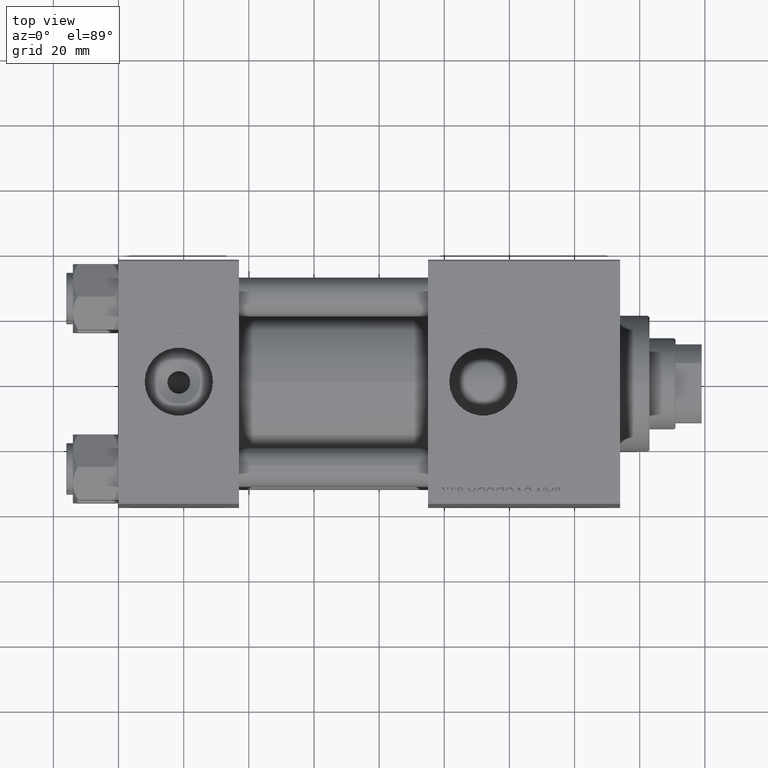
[diagram: clean part render]
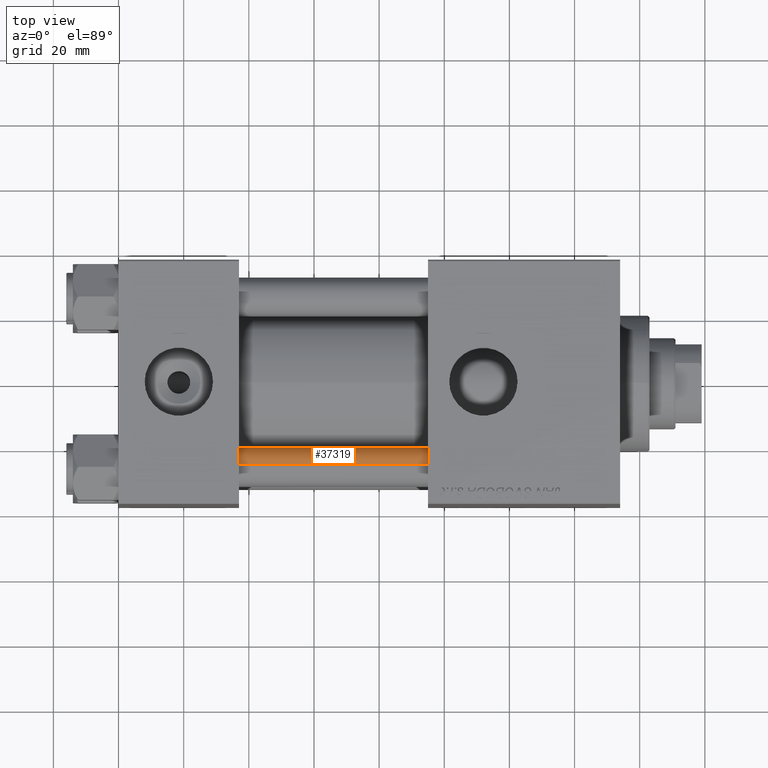
[diagram: same view with one face highlighted and labeled with its STEP entity id]
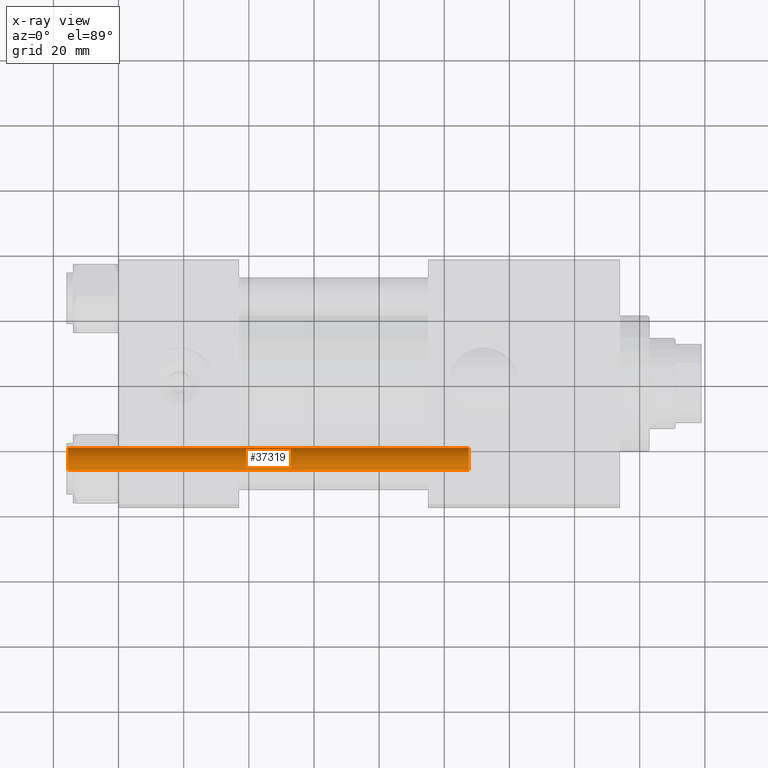
[diagram: x-ray of the same camera — body ghosted, the highlighted face saturated]
A machine part, top view. The second image highlights one B-rep face of the part: STEP entity #37319.
The next image is the same camera in x-ray: the body ghosted, the highlighted face saturated — about 0% of this face is hidden behind the body in this view.
In plain terms, the highlighted cylindrical surface (edge-blend (fillet) strip) has radius 6 mm, axis along (1, 0, -0).
Its self-contained STEP definition (entity closure, byte-faithful):
#1483 = EDGE_LOOP ( 'NONE', ( #7146, #22584, #37356, #38575 ) ) ;
#3674 = EDGE_CURVE ( 'NONE', #25400, #18741, #3842, .T. ) ;
#3842 = LINE ( 'NONE', #18710, #31040 ) ;
#4013 = CIRCLE ( 'NONE', #23239, 6.000000000000000888 ) ;
#5725 = VERTEX_POINT ( 'NONE', #41844 ) ;
#6412 = EDGE_CURVE ( 'NONE', #5725, #25400, #46183, .T. ) ;
#6968 = CARTESIAN_POINT ( 'NONE',  ( 0.000000000000000000, 0.000000000000000000, 0.4999999999999865663 ) ) ;
#7146 = ORIENTED_EDGE ( 'NONE', *, *, #29595, .F. ) ;
#10372 = DIRECTION ( 'NONE',  ( -1.000000000000000000, 0.000000000000000000, 0.000000000000000000 ) ) ;
#10634 = FACE_OUTER_BOUND ( 'NONE', #1483, .T. ) ;
#11052 = CARTESIAN_POINT ( 'NONE',  ( 6.000000000000000888, 7.347880794884120722E-16, 124.0000000000000000 ) ) ;
#11104 = DIRECTION ( 'NONE',  ( -0.000000000000000000, -0.000000000000000000, -1.000000000000000000 ) ) ;
#18710 = CARTESIAN_POINT ( 'NONE',  ( -6.000000000000000888, 0.000000000000000000, 124.0000000000000000 ) ) ;
#18741 = VERTEX_POINT ( 'NONE', #34834 ) ;
#18789 = AXIS2_PLACEMENT_3D ( 'NONE', #29778, #22687, #10372 ) ;
#19535 = DIRECTION ( 'NONE',  ( 1.000000000000000000, 0.000000000000000000, 0.000000000000000000 ) ) ;
#21766 = DIRECTION ( 'NONE',  ( 0.000000000000000000, 0.000000000000000000, -1.000000000000000000 ) ) ;
#22584 = ORIENTED_EDGE ( 'NONE', *, *, #6412, .T. ) ;
#22687 = DIRECTION ( 'NONE',  ( -0.000000000000000000, -0.000000000000000000, -1.000000000000000000 ) ) ;
#23239 = AXIS2_PLACEMENT_3D ( 'NONE', #6968, #47621, #19535 ) ;
#24525 = VECTOR ( 'NONE', #51197, 1000.000000000000000 ) ;
#25239 = AXIS2_PLACEMENT_3D ( 'NONE', #48810, #21766, #45135 ) ;
#25400 = VERTEX_POINT ( 'NONE', #47777 ) ;
#29595 = EDGE_CURVE ( 'NONE', #5725, #34132, #42294, .T. ) ;
#29778 = CARTESIAN_POINT ( 'NONE',  ( 0.000000000000000000, 0.000000000000000000, 124.0000000000000000 ) ) ;
#31040 = VECTOR ( 'NONE', #11104, 1000.000000000000000 ) ;
#33987 = CYLINDRICAL_SURFACE ( 'NONE', #18789, 6.000000000000000888 ) ;
#34132 = VERTEX_POINT ( 'NONE', #46348 ) ;
#34834 = CARTESIAN_POINT ( 'NONE',  ( -6.000000000000000888, 0.000000000000000000, 0.4999999999999865663 ) ) ;
#37319 = ADVANCED_FACE ( 'NONE', ( #10634 ), #33987, .T. ) ;
#37356 = ORIENTED_EDGE ( 'NONE', *, *, #3674, .T. ) ;
#38575 = ORIENTED_EDGE ( 'NONE', *, *, #45018, .T. ) ;
#41844 = CARTESIAN_POINT ( 'NONE',  ( 6.000000000000000888, 7.347880794884120722E-16, 123.5000000000000426 ) ) ;
#42294 = LINE ( 'NONE', #11052, #24525 ) ;
#45018 = EDGE_CURVE ( 'NONE', #18741, #34132, #4013, .T. ) ;
#45135 = DIRECTION ( 'NONE',  ( 1.000000000000000000, 0.000000000000000000, 0.000000000000000000 ) ) ;
#46183 = CIRCLE ( 'NONE', #25239, 6.000000000000000888 ) ;
#46348 = CARTESIAN_POINT ( 'NONE',  ( 6.000000000000000888, 7.347880794884120722E-16, 0.4999999999999865663 ) ) ;
#47621 = DIRECTION ( 'NONE',  ( -0.000000000000000000, -0.000000000000000000, 1.000000000000000000 ) ) ;
#47777 = CARTESIAN_POINT ( 'NONE',  ( -6.000000000000000888, 0.000000000000000000, 123.5000000000000426 ) ) ;
#48810 = CARTESIAN_POINT ( 'NONE',  ( 0.000000000000000000, 0.000000000000000000, 123.5000000000000426 ) ) ;
#51197 = DIRECTION ( 'NONE',  ( -0.000000000000000000, -0.000000000000000000, -1.000000000000000000 ) ) ;